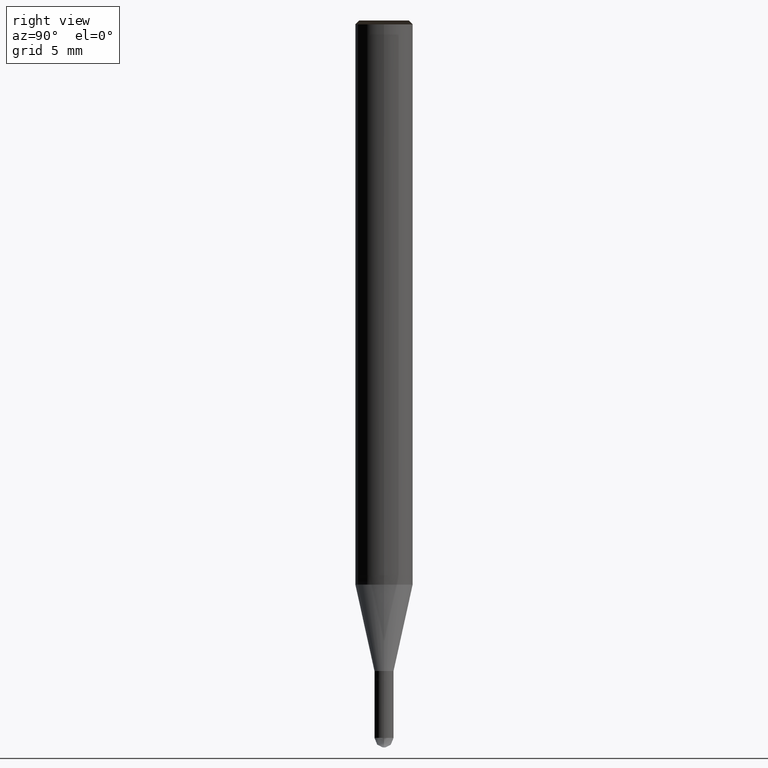
[diagram: clean part render]
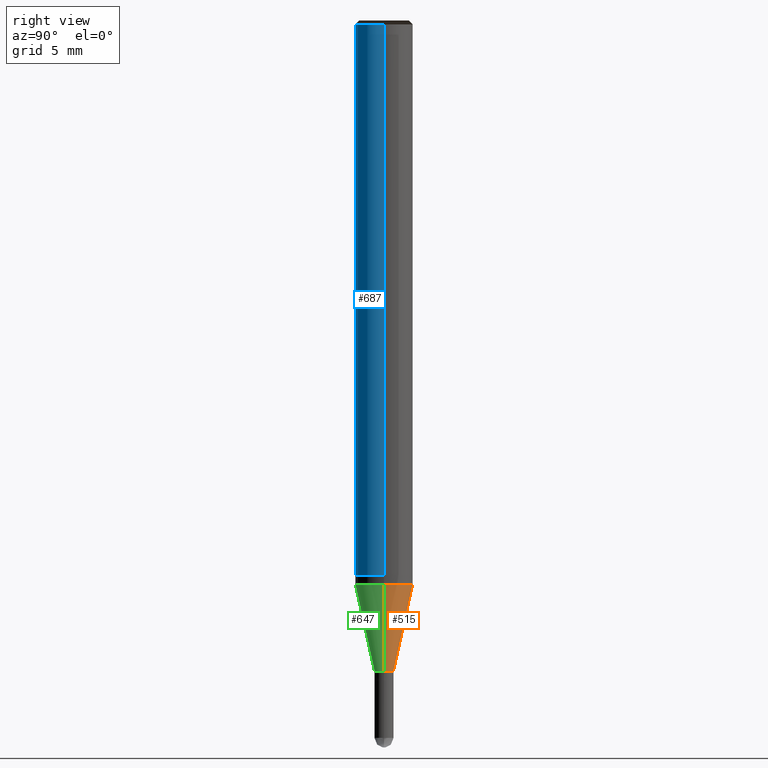
[diagram: same view with three faces highlighted in distinct colors, each labeled with its STEP entity id]
A machine part, right view with three faces highlighted in distinct colors.
Their STEP definitions:

[orange] entity #515 — the highlighted face is a freeform B-spline surface patch.
#306=CARTESIAN_POINT('',(0.5,0.0,-5.0));
#307=CARTESIAN_POINT('',(0.5,0.5,-5.0));
#308=CARTESIAN_POINT('',(0.0,0.5,-5.0));
#309=CARTESIAN_POINT('',(-0.5,0.5,-5.0));
#310=CARTESIAN_POINT('',(-0.5,0.0,-5.0));
#311=CARTESIAN_POINT('',(1.5,0.0,-0.489291496338));
#312=CARTESIAN_POINT('',(1.5,1.5,-0.489291496338));
#313=CARTESIAN_POINT('',(0.0,1.5,-0.489291496338));
#314=CARTESIAN_POINT('',(-1.5,1.5,-0.489291496338));
#315=CARTESIAN_POINT('',(-1.5,0.0,-0.489291496338));
#496=(
BOUNDED_SURFACE()
B_SPLINE_SURFACE(1,2,(
(#306,#307,#308,#309,#310),
(#311,#312,#313,#314,#315)
), .UNSPECIFIED.,.F.,.F.,.F.)
B_SPLINE_SURFACE_WITH_KNOTS((2,2),(3,2,3),(
0.0,1.0),(
0.0,0.5,1.0), .UNSPECIFIED.)
GEOMETRIC_REPRESENTATION_ITEM()
RATIONAL_B_SPLINE_SURFACE(((1.0,0.707106781187,1.0,0.707106781187,1.0),
(1.0,0.707106781187,1.0,0.707106781187,1.0)
))
REPRESENTATION_ITEM('')
SURFACE()
);
#497=(
BOUNDED_CURVE()
B_SPLINE_CURVE(2,(#310,#309,#308,#307,#306),.UNSPECIFIED.,.F.,.F.)
B_SPLINE_CURVE_WITH_KNOTS((3,2,3),
(0.0,0.5,1.0),.UNSPECIFIED.)
CURVE()
GEOMETRIC_REPRESENTATION_ITEM()
RATIONAL_B_SPLINE_CURVE((1.0,0.707106781187,1.0,0.707106781187,1.0))
REPRESENTATION_ITEM('')
);
#498=(
BOUNDED_CURVE()
B_SPLINE_CURVE(1,(#306,#311),.UNSPECIFIED.,.F.,.F.)
B_SPLINE_CURVE_WITH_KNOTS((2,2),
(0.0,1.0),.UNSPECIFIED.)
CURVE()
GEOMETRIC_REPRESENTATION_ITEM()
RATIONAL_B_SPLINE_CURVE((1.0,1.0))
REPRESENTATION_ITEM('')
);
#499=(
BOUNDED_CURVE()
B_SPLINE_CURVE(2,(#311,#312,#313,#314,#315),.UNSPECIFIED.,.F.,.F.)
B_SPLINE_CURVE_WITH_KNOTS((3,2,3),
(0.0,0.5,1.0),.UNSPECIFIED.)
CURVE()
GEOMETRIC_REPRESENTATION_ITEM()
RATIONAL_B_SPLINE_CURVE((1.0,0.707106781187,1.0,0.707106781187,1.0))
REPRESENTATION_ITEM('')
);
#500=(
BOUNDED_CURVE()
B_SPLINE_CURVE(1,(#315,#310),.UNSPECIFIED.,.F.,.F.)
B_SPLINE_CURVE_WITH_KNOTS((2,2),
(0.0,1.0),.UNSPECIFIED.)
CURVE()
GEOMETRIC_REPRESENTATION_ITEM()
RATIONAL_B_SPLINE_CURVE((1.0,1.0))
REPRESENTATION_ITEM('')
);
#501=VERTEX_POINT('',#306);
#502=VERTEX_POINT('',#310);
#503=VERTEX_POINT('',#311);
#504=VERTEX_POINT('',#315);
#505=EDGE_CURVE('',#502,#501,#497,.T.);
#506=EDGE_CURVE('',#501,#503,#498,.T.);
#507=EDGE_CURVE('',#503,#504,#499,.T.);
#508=EDGE_CURVE('',#504,#502,#500,.T.);
#509=ORIENTED_EDGE('',*,*,#505,.T.);
#510=ORIENTED_EDGE('',*,*,#506,.T.);
#511=ORIENTED_EDGE('',*,*,#507,.T.);
#512=ORIENTED_EDGE('',*,*,#508,.T.);
#513=EDGE_LOOP('',(#509,#510,#511,#512));
#514=FACE_OUTER_BOUND('',#513,.T.);
#515=ADVANCED_FACE('',(#514),#496,.T.);

[blue] entity #687 — the highlighted face is a freeform B-spline surface patch.
#316=CARTESIAN_POINT('',(1.5,0.0,0.0));
#320=CARTESIAN_POINT('',(-1.5,0.0,0.0));
#321=CARTESIAN_POINT('',(1.5,0.0,28.8));
#325=CARTESIAN_POINT('',(-1.5,0.0,28.8));
#338=CARTESIAN_POINT('',(-1.5,-1.5,0.0));
#339=CARTESIAN_POINT('',(0.0,-1.5,0.0));
#340=CARTESIAN_POINT('',(1.5,-1.5,0.0));
#341=CARTESIAN_POINT('',(-1.5,-1.5,28.8));
#342=CARTESIAN_POINT('',(0.0,-1.5,28.8));
#343=CARTESIAN_POINT('',(1.5,-1.5,28.8));
#668=(
BOUNDED_SURFACE()
B_SPLINE_SURFACE(1,2,(
(#320,#338,#339,#340,#316),
(#325,#341,#342,#343,#321)
), .UNSPECIFIED.,.F.,.F.,.F.)
B_SPLINE_SURFACE_WITH_KNOTS((2,2),(3,2,3),(
0.0,1.0),(
0.0,0.5,1.0), .UNSPECIFIED.)
GEOMETRIC_REPRESENTATION_ITEM()
RATIONAL_B_SPLINE_SURFACE(((1.0,0.707106781187,1.0,0.707106781187,1.0),
(1.0,0.707106781187,1.0,0.707106781187,1.0)
))
REPRESENTATION_ITEM('')
SURFACE()
);
#669=(
BOUNDED_CURVE()
B_SPLINE_CURVE(2,(#316,#340,#339,#338,#320),.UNSPECIFIED.,.F.,.F.)
B_SPLINE_CURVE_WITH_KNOTS((3,2,3),
(0.0,0.5,1.0),.UNSPECIFIED.)
CURVE()
GEOMETRIC_REPRESENTATION_ITEM()
RATIONAL_B_SPLINE_CURVE((1.0,0.707106781187,1.0,0.707106781187,1.0))
REPRESENTATION_ITEM('')
);
#670=(
BOUNDED_CURVE()
B_SPLINE_CURVE(1,(#320,#325),.UNSPECIFIED.,.F.,.F.)
B_SPLINE_CURVE_WITH_KNOTS((2,2),
(0.0,1.0),.UNSPECIFIED.)
CURVE()
GEOMETRIC_REPRESENTATION_ITEM()
RATIONAL_B_SPLINE_CURVE((1.0,1.0))
REPRESENTATION_ITEM('')
);
#671=(
BOUNDED_CURVE()
B_SPLINE_CURVE(2,(#325,#341,#342,#343,#321),.UNSPECIFIED.,.F.,.F.)
B_SPLINE_CURVE_WITH_KNOTS((3,2,3),
(0.0,0.5,1.0),.UNSPECIFIED.)
CURVE()
GEOMETRIC_REPRESENTATION_ITEM()
RATIONAL_B_SPLINE_CURVE((1.0,0.707106781187,1.0,0.707106781187,1.0))
REPRESENTATION_ITEM('')
);
#672=(
BOUNDED_CURVE()
B_SPLINE_CURVE(1,(#321,#316),.UNSPECIFIED.,.F.,.F.)
B_SPLINE_CURVE_WITH_KNOTS((2,2),
(0.0,1.0),.UNSPECIFIED.)
CURVE()
GEOMETRIC_REPRESENTATION_ITEM()
RATIONAL_B_SPLINE_CURVE((1.0,1.0))
REPRESENTATION_ITEM('')
);
#673=VERTEX_POINT('',#316);
#674=VERTEX_POINT('',#320);
#675=VERTEX_POINT('',#321);
#676=VERTEX_POINT('',#325);
#677=EDGE_CURVE('',#673,#674,#669,.T.);
#678=EDGE_CURVE('',#674,#676,#670,.T.);
#679=EDGE_CURVE('',#676,#675,#671,.T.);
#680=EDGE_CURVE('',#675,#673,#672,.T.);
#681=ORIENTED_EDGE('',*,*,#677,.T.);
#682=ORIENTED_EDGE('',*,*,#678,.T.);
#683=ORIENTED_EDGE('',*,*,#679,.T.);
#684=ORIENTED_EDGE('',*,*,#680,.T.);
#685=EDGE_LOOP('',(#681,#682,#683,#684));
#686=FACE_OUTER_BOUND('',#685,.T.);
#687=ADVANCED_FACE('',(#686),#668,.T.);

[green] entity #647 — the highlighted face is a freeform B-spline surface patch.
#306=CARTESIAN_POINT('',(0.5,0.0,-5.0));
#310=CARTESIAN_POINT('',(-0.5,0.0,-5.0));
#311=CARTESIAN_POINT('',(1.5,0.0,-0.489291496338));
#315=CARTESIAN_POINT('',(-1.5,0.0,-0.489291496338));
#332=CARTESIAN_POINT('',(-0.5,-0.5,-5.0));
#333=CARTESIAN_POINT('',(0.0,-0.5,-5.0));
#334=CARTESIAN_POINT('',(0.5,-0.5,-5.0));
#335=CARTESIAN_POINT('',(-1.5,-1.5,-0.489291496338));
#336=CARTESIAN_POINT('',(0.0,-1.5,-0.489291496338));
#337=CARTESIAN_POINT('',(1.5,-1.5,-0.489291496338));
#628=(
BOUNDED_SURFACE()
B_SPLINE_SURFACE(1,2,(
(#310,#332,#333,#334,#306),
(#315,#335,#336,#337,#311)
), .UNSPECIFIED.,.F.,.F.,.F.)
B_SPLINE_SURFACE_WITH_KNOTS((2,2),(3,2,3),(
0.0,1.0),(
0.0,0.5,1.0), .UNSPECIFIED.)
GEOMETRIC_REPRESENTATION_ITEM()
RATIONAL_B_SPLINE_SURFACE(((1.0,0.707106781187,1.0,0.707106781187,1.0),
(1.0,0.707106781187,1.0,0.707106781187,1.0)
))
REPRESENTATION_ITEM('')
SURFACE()
);
#629=(
BOUNDED_CURVE()
B_SPLINE_CURVE(2,(#306,#334,#333,#332,#310),.UNSPECIFIED.,.F.,.F.)
B_SPLINE_CURVE_WITH_KNOTS((3,2,3),
(0.0,0.5,1.0),.UNSPECIFIED.)
CURVE()
GEOMETRIC_REPRESENTATION_ITEM()
RATIONAL_B_SPLINE_CURVE((1.0,0.707106781187,1.0,0.707106781187,1.0))
REPRESENTATION_ITEM('')
);
#630=(
BOUNDED_CURVE()
B_SPLINE_CURVE(1,(#310,#315),.UNSPECIFIED.,.F.,.F.)
B_SPLINE_CURVE_WITH_KNOTS((2,2),
(0.0,1.0),.UNSPECIFIED.)
CURVE()
GEOMETRIC_REPRESENTATION_ITEM()
RATIONAL_B_SPLINE_CURVE((1.0,1.0))
REPRESENTATION_ITEM('')
);
#631=(
BOUNDED_CURVE()
B_SPLINE_CURVE(2,(#315,#335,#336,#337,#311),.UNSPECIFIED.,.F.,.F.)
B_SPLINE_CURVE_WITH_KNOTS((3,2,3),
(0.0,0.5,1.0),.UNSPECIFIED.)
CURVE()
GEOMETRIC_REPRESENTATION_ITEM()
RATIONAL_B_SPLINE_CURVE((1.0,0.707106781187,1.0,0.707106781187,1.0))
REPRESENTATION_ITEM('')
);
#632=(
BOUNDED_CURVE()
B_SPLINE_CURVE(1,(#311,#306),.UNSPECIFIED.,.F.,.F.)
B_SPLINE_CURVE_WITH_KNOTS((2,2),
(0.0,1.0),.UNSPECIFIED.)
CURVE()
GEOMETRIC_REPRESENTATION_ITEM()
RATIONAL_B_SPLINE_CURVE((1.0,1.0))
REPRESENTATION_ITEM('')
);
#633=VERTEX_POINT('',#306);
#634=VERTEX_POINT('',#310);
#635=VERTEX_POINT('',#311);
#636=VERTEX_POINT('',#315);
#637=EDGE_CURVE('',#633,#634,#629,.T.);
#638=EDGE_CURVE('',#634,#636,#630,.T.);
#639=EDGE_CURVE('',#636,#635,#631,.T.);
#640=EDGE_CURVE('',#635,#633,#632,.T.);
#641=ORIENTED_EDGE('',*,*,#637,.T.);
#642=ORIENTED_EDGE('',*,*,#638,.T.);
#643=ORIENTED_EDGE('',*,*,#639,.T.);
#644=ORIENTED_EDGE('',*,*,#640,.T.);
#645=EDGE_LOOP('',(#641,#642,#643,#644));
#646=FACE_OUTER_BOUND('',#645,.T.);
#647=ADVANCED_FACE('',(#646),#628,.T.);